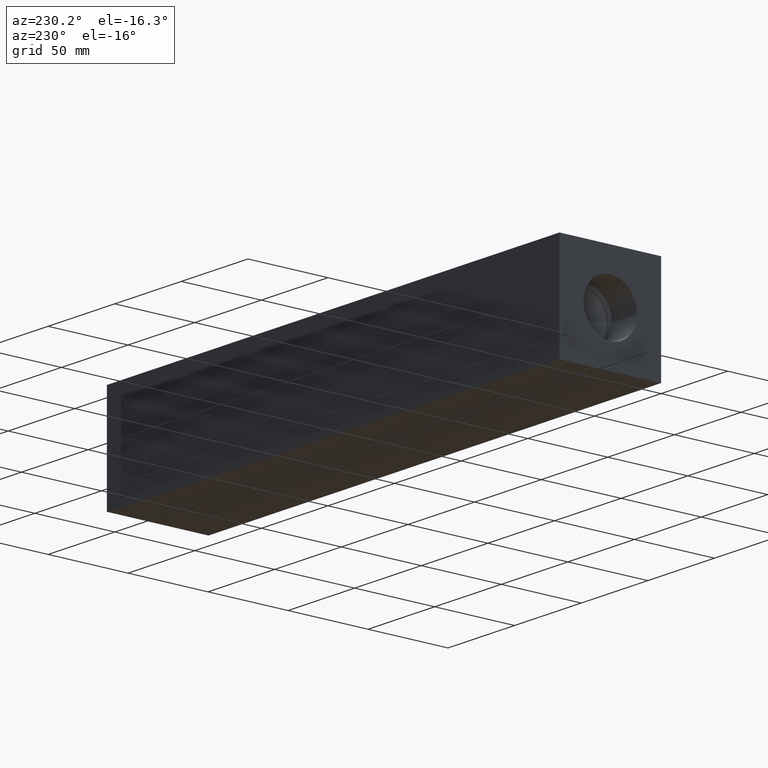
[diagram: clean part render]
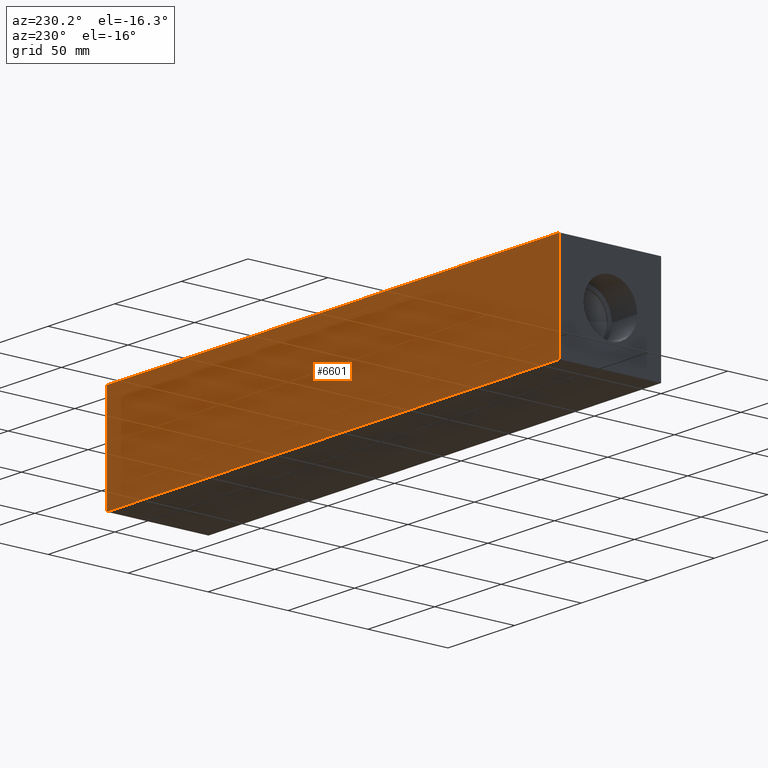
[diagram: same view with one face highlighted and labeled with its STEP entity id]
A machine part, auxiliary view. The second image highlights one B-rep face of the part: STEP entity #6601.
In plain terms, the highlighted planar face has unit normal (0, 1, 0).
Its self-contained STEP definition (entity closure, byte-faithful):
#368=PLANE('',#6930);
#701=FACE_OUTER_BOUND('',#1075,.T.);
#1075=EDGE_LOOP('',(#5885,#5886,#5887,#5888));
#1357=LINE('',#9972,#2044);
#1764=LINE('',#11070,#2451);
#1765=LINE('',#11073,#2452);
#1766=LINE('',#11074,#2453);
#2044=VECTOR('',#7369,10.);
#2451=VECTOR('',#8238,10.);
#2452=VECTOR('',#8241,10.);
#2453=VECTOR('',#8242,10.);
#2883=VERTEX_POINT('',#9969);
#2884=VERTEX_POINT('',#9971);
#3215=VERTEX_POINT('',#11066);
#3217=VERTEX_POINT('',#11072);
#3629=EDGE_CURVE('',#2883,#2884,#1357,.T.);
#4110=EDGE_CURVE('',#3215,#2884,#1764,.T.);
#4111=EDGE_CURVE('',#3217,#3215,#1765,.T.);
#4112=EDGE_CURVE('',#3217,#2883,#1766,.T.);
#5885=ORIENTED_EDGE('',*,*,#4111,.T.);
#5886=ORIENTED_EDGE('',*,*,#4110,.T.);
#5887=ORIENTED_EDGE('',*,*,#3629,.F.);
#5888=ORIENTED_EDGE('',*,*,#4112,.F.);
#6601=ADVANCED_FACE('',(#701),#368,.T.);
#6930=AXIS2_PLACEMENT_3D('',#11071,#8239,#8240);
#7369=DIRECTION('',(-1.,0.,0.));
#8238=DIRECTION('',(0.,0.,1.));
#8239=DIRECTION('center_axis',(0.,1.,0.));
#8240=DIRECTION('ref_axis',(-1.,0.,0.));
#8241=DIRECTION('',(-1.,0.,0.));
#8242=DIRECTION('',(0.,0.,1.));
#9969=CARTESIAN_POINT('',(339.725,63.5,63.5));
#9971=CARTESIAN_POINT('',(0.,63.5,63.5));
#9972=CARTESIAN_POINT('',(339.725,63.5,63.5));
#11066=CARTESIAN_POINT('',(0.,63.5,0.));
#11070=CARTESIAN_POINT('',(0.,63.5,0.));
#11071=CARTESIAN_POINT('Origin',(339.725,63.5,0.));
#11072=CARTESIAN_POINT('',(339.725,63.5,0.));
#11073=CARTESIAN_POINT('',(339.725,63.5,0.));
#11074=CARTESIAN_POINT('',(339.725,63.5,0.));